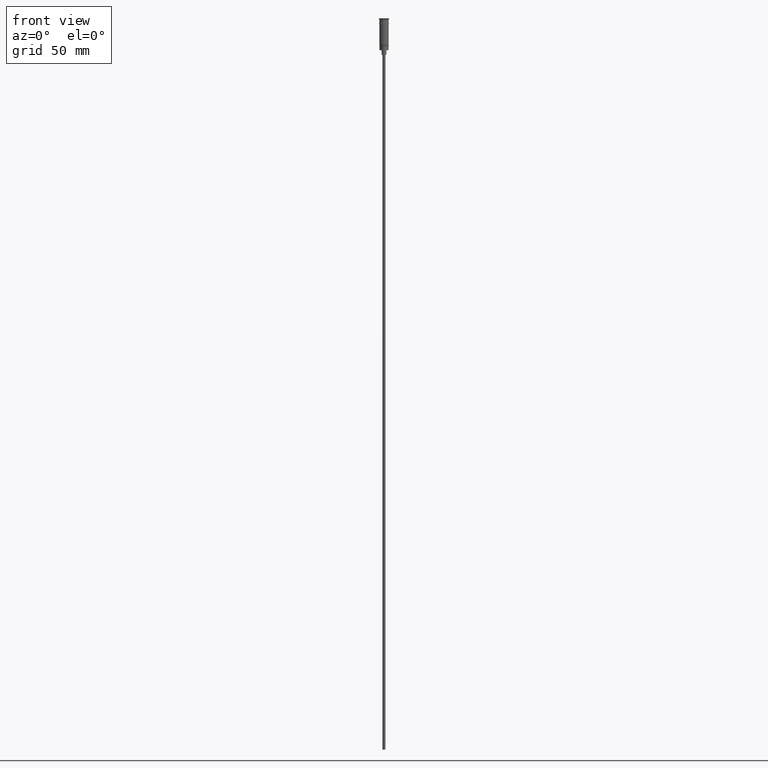
[diagram: clean part render]
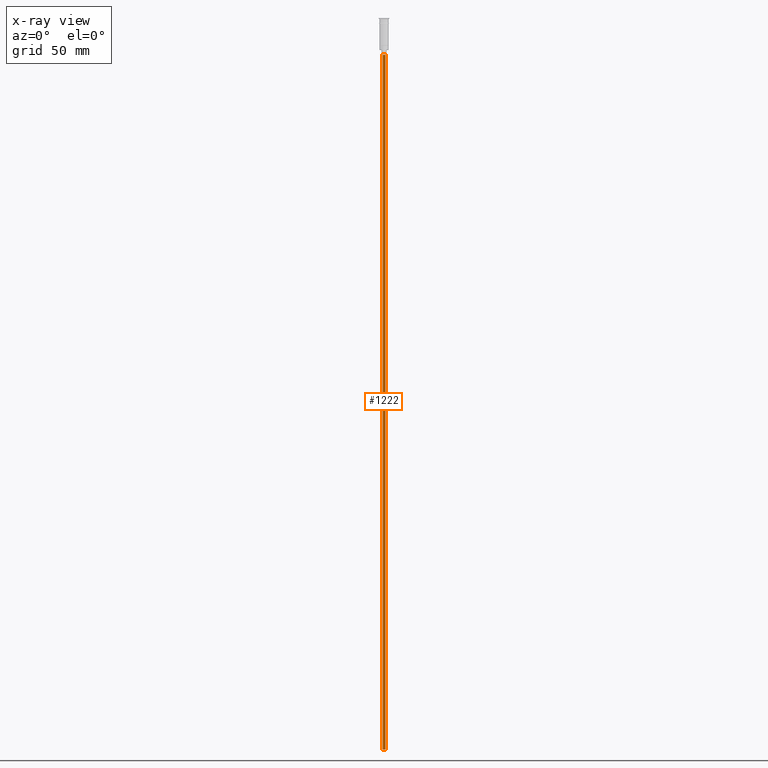
[diagram: x-ray — body ghosted, one internal face saturated and labeled with its STEP entity id]
A machine part, front view, then the same camera in x-ray: the body is ghosted and one INTERNAL B-rep face — a face not visible from any outside direction — is saturated and labeled: STEP entity #1222.
In plain terms, the highlighted cylindrical surface (edge-blend (fillet) strip) has radius 1 mm, axis along (-0, -0, 1).
Its self-contained STEP definition (entity closure, byte-faithful):
#31 = DIRECTION ( 'NONE',  ( 0.000000000000000000, 0.000000000000000000, -1.000000000000000000 ) ) ;
#142 = CARTESIAN_POINT ( 'NONE',  ( 0.000000000000000000, 0.000000000000000000, -470.5000000000000568 ) ) ;
#183 = CARTESIAN_POINT ( 'NONE',  ( 0.9999999999999997780, 0.000000000000000000, -470.5000000000000568 ) ) ;
#199 = DIRECTION ( 'NONE',  ( -0.000000000000000000, -0.000000000000000000, 1.000000000000000000 ) ) ;
#208 = VERTEX_POINT ( 'NONE', #673 ) ;
#274 = DIRECTION ( 'NONE',  ( 0.000000000000000000, 0.000000000000000000, -1.000000000000000000 ) ) ;
#285 = VECTOR ( 'NONE', #589, 1000.000000000000000 ) ;
#291 = EDGE_CURVE ( 'NONE', #1173, #666, #409, .T. ) ;
#339 = CARTESIAN_POINT ( 'NONE',  ( -0.9999999999999997780, 1.224646799147352961E-16, -470.5000000000000568 ) ) ;
#360 = FACE_OUTER_BOUND ( 'NONE', #1033, .T. ) ;
#386 = AXIS2_PLACEMENT_3D ( 'NONE', #854, #274, #1472 ) ;
#388 = ORIENTED_EDGE ( 'NONE', *, *, #291, .T. ) ;
#390 = AXIS2_PLACEMENT_3D ( 'NONE', #501, #31, #1509 ) ;
#409 = CIRCLE ( 'NONE', #386, 0.9999999999999997780 ) ;
#471 = ORIENTED_EDGE ( 'NONE', *, *, #793, .F. ) ;
#479 = DIRECTION ( 'NONE',  ( -0.000000000000000000, -0.000000000000000000, 1.000000000000000000 ) ) ;
#482 = CARTESIAN_POINT ( 'NONE',  ( 0.9999999999999997780, 0.000000000000000000, -23.50000000000000000 ) ) ;
#501 = CARTESIAN_POINT ( 'NONE',  ( 0.000000000000000000, 0.000000000000000000, -470.5000000000000568 ) ) ;
#589 = DIRECTION ( 'NONE',  ( -0.000000000000000000, -0.000000000000000000, 1.000000000000000000 ) ) ;
#666 = VERTEX_POINT ( 'NONE', #482 ) ;
#673 = CARTESIAN_POINT ( 'NONE',  ( -0.9999999999999997780, 1.224646799147352961E-16, -470.5000000000000568 ) ) ;
#791 = AXIS2_PLACEMENT_3D ( 'NONE', #142, #479, #856 ) ;
#793 = EDGE_CURVE ( 'NONE', #208, #1461, #842, .T. ) ;
#830 = ORIENTED_EDGE ( 'NONE', *, *, #1512, .T. ) ;
#842 = CIRCLE ( 'NONE', #390, 0.9999999999999997780 ) ;
#854 = CARTESIAN_POINT ( 'NONE',  ( 0.000000000000000000, 0.000000000000000000, -23.50000000000000000 ) ) ;
#856 = DIRECTION ( 'NONE',  ( 1.000000000000000000, 0.000000000000000000, 0.000000000000000000 ) ) ;
#1033 = EDGE_LOOP ( 'NONE', ( #471, #830, #388, #1077 ) ) ;
#1077 = ORIENTED_EDGE ( 'NONE', *, *, #1502, .F. ) ;
#1105 = CYLINDRICAL_SURFACE ( 'NONE', #791, 0.9999999999999997780 ) ;
#1173 = VERTEX_POINT ( 'NONE', #1304 ) ;
#1182 = VECTOR ( 'NONE', #199, 1000.000000000000000 ) ;
#1222 = ADVANCED_FACE ( 'NONE', ( #360 ), #1105, .T. ) ;
#1293 = LINE ( 'NONE', #183, #1182 ) ;
#1304 = CARTESIAN_POINT ( 'NONE',  ( -0.9999999999999997780, 1.224646799147352961E-16, -23.50000000000000000 ) ) ;
#1427 = LINE ( 'NONE', #339, #285 ) ;
#1461 = VERTEX_POINT ( 'NONE', #1531 ) ;
#1472 = DIRECTION ( 'NONE',  ( -1.000000000000000000, 0.000000000000000000, 0.000000000000000000 ) ) ;
#1502 = EDGE_CURVE ( 'NONE', #1461, #666, #1293, .T. ) ;
#1509 = DIRECTION ( 'NONE',  ( -1.000000000000000000, 0.000000000000000000, 0.000000000000000000 ) ) ;
#1512 = EDGE_CURVE ( 'NONE', #208, #1173, #1427, .T. ) ;
#1531 = CARTESIAN_POINT ( 'NONE',  ( 0.9999999999999997780, 0.000000000000000000, -470.5000000000000568 ) ) ;